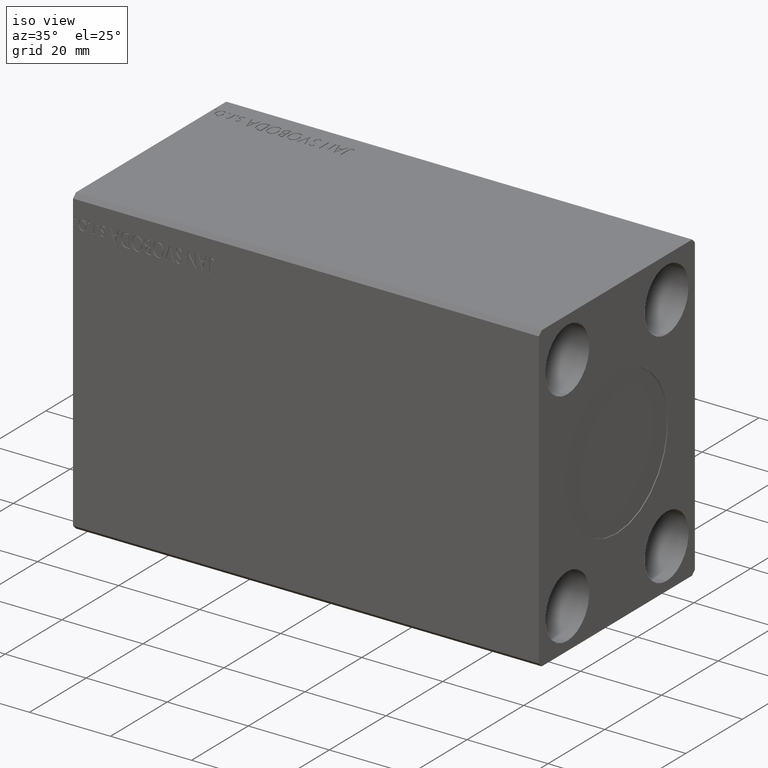
[diagram: clean part render]
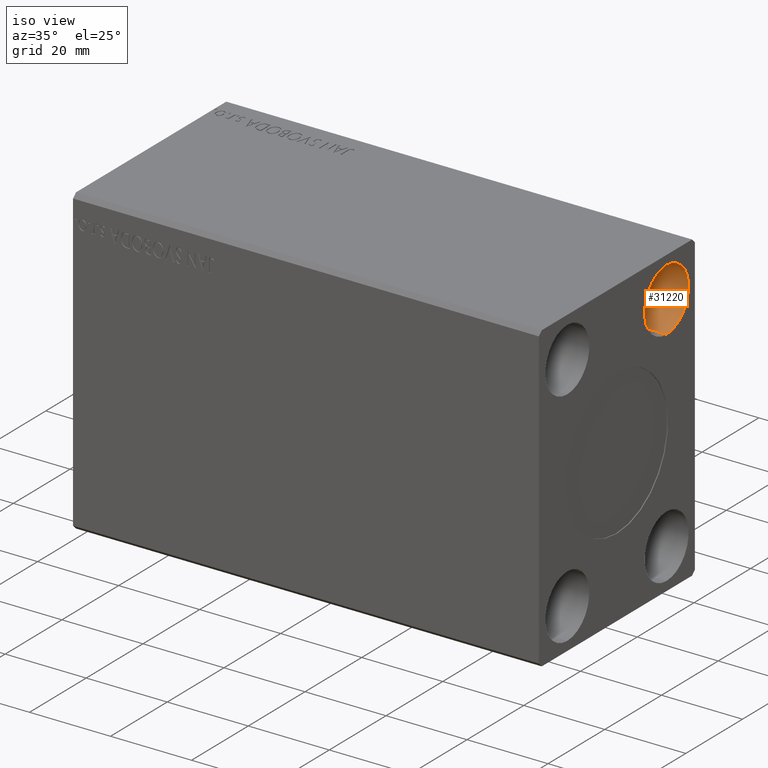
[diagram: same view with one face highlighted and labeled with its STEP entity id]
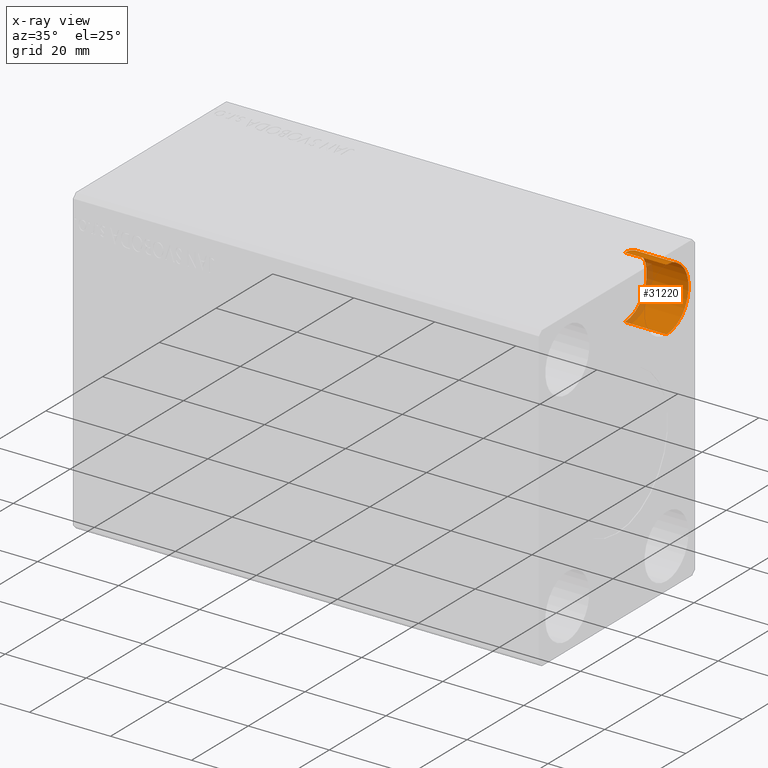
[diagram: x-ray of the same camera — body ghosted, the highlighted face saturated]
A machine part, iso view. The second image highlights one B-rep face of the part: STEP entity #31220.
The next image is the same camera in x-ray: the body ghosted, the highlighted face saturated — about 12% of this face is hidden behind the body in this view.
In plain terms, the highlighted cylindrical surface (partial cylindrical patch) has radius 7.75 mm, axis along (1, -0, -0).
Its self-contained STEP definition (entity closure, byte-faithful):
#791 = CARTESIAN_POINT ( 'NONE',  ( 104.6700000000000017, 17.50000000000000000, 27.50000000000000000 ) ) ;
#1450 = EDGE_CURVE ( 'NONE', #13870, #39615, #32095, .T. ) ;
#2200 = CARTESIAN_POINT ( 'NONE',  ( 104.6700000000000017, 17.50000000000000000, 27.50000000000000000 ) ) ;
#4145 = CARTESIAN_POINT ( 'NONE',  ( 104.6700000000000017, 17.50000000000000000, 19.74999999999999645 ) ) ;
#4449 = DIRECTION ( 'NONE',  ( 0.000000000000000000, 0.000000000000000000, -1.000000000000000000 ) ) ;
#5386 = ORIENTED_EDGE ( 'NONE', *, *, #25731, .T. ) ;
#6771 = CIRCLE ( 'NONE', #23976, 7.750000000000003553 ) ;
#11224 = EDGE_CURVE ( 'NONE', #20783, #16559, #6771, .T. ) ;
#12033 = AXIS2_PLACEMENT_3D ( 'NONE', #791, #40219, #4449 ) ;
#12535 = DIRECTION ( 'NONE',  ( 1.000000000000000000, -0.000000000000000000, -0.000000000000000000 ) ) ;
#13158 = DIRECTION ( 'NONE',  ( 1.000000000000000000, -0.000000000000000000, -0.000000000000000000 ) ) ;
#13498 = AXIS2_PLACEMENT_3D ( 'NONE', #28925, #13158, #39264 ) ;
#13870 = VERTEX_POINT ( 'NONE', #32663 ) ;
#15065 = ORIENTED_EDGE ( 'NONE', *, *, #24704, .F. ) ;
#15135 = LINE ( 'NONE', #34760, #28395 ) ;
#15541 = DIRECTION ( 'NONE',  ( 0.000000000000000000, 0.000000000000000000, -1.000000000000000000 ) ) ;
#16559 = VERTEX_POINT ( 'NONE', #25008 ) ;
#19772 = CARTESIAN_POINT ( 'NONE',  ( 104.6700000000000017, 17.50000000000000000, 19.74999999999999645 ) ) ;
#20236 = CARTESIAN_POINT ( 'NONE',  ( 115.0000000000000000, 17.50000000000000000, 35.25000000000000000 ) ) ;
#20501 = ORIENTED_EDGE ( 'NONE', *, *, #11224, .F. ) ;
#20783 = VERTEX_POINT ( 'NONE', #4145 ) ;
#23438 = DIRECTION ( 'NONE',  ( 1.000000000000000000, -0.000000000000000000, -0.000000000000000000 ) ) ;
#23976 = AXIS2_PLACEMENT_3D ( 'NONE', #2200, #27856, #15541 ) ;
#24704 = EDGE_CURVE ( 'NONE', #16559, #39615, #15135, .T. ) ;
#24952 = VECTOR ( 'NONE', #23438, 1000.000000000000000 ) ;
#25008 = CARTESIAN_POINT ( 'NONE',  ( 104.6700000000000017, 17.50000000000000000, 35.25000000000000000 ) ) ;
#25731 = EDGE_CURVE ( 'NONE', #20783, #13870, #33150, .T. ) ;
#26861 = FACE_OUTER_BOUND ( 'NONE', #40962, .T. ) ;
#27856 = DIRECTION ( 'NONE',  ( 1.000000000000000000, -0.000000000000000000, -0.000000000000000000 ) ) ;
#28395 = VECTOR ( 'NONE', #12535, 1000.000000000000000 ) ;
#28925 = CARTESIAN_POINT ( 'NONE',  ( 115.0000000000000000, 17.50000000000000000, 27.50000000000000000 ) ) ;
#30311 = CYLINDRICAL_SURFACE ( 'NONE', #12033, 7.750000000000003553 ) ;
#31220 = ADVANCED_FACE ( 'NONE', ( #26861 ), #30311, .F. ) ;
#32095 = CIRCLE ( 'NONE', #13498, 7.750000000000003553 ) ;
#32663 = CARTESIAN_POINT ( 'NONE',  ( 115.0000000000000000, 17.50000000000000000, 19.74999999999999645 ) ) ;
#33150 = LINE ( 'NONE', #19772, #24952 ) ;
#34379 = ORIENTED_EDGE ( 'NONE', *, *, #1450, .T. ) ;
#34760 = CARTESIAN_POINT ( 'NONE',  ( 104.6700000000000017, 17.50000000000000000, 35.25000000000000000 ) ) ;
#39264 = DIRECTION ( 'NONE',  ( 0.000000000000000000, 0.000000000000000000, -1.000000000000000000 ) ) ;
#39615 = VERTEX_POINT ( 'NONE', #20236 ) ;
#40219 = DIRECTION ( 'NONE',  ( 1.000000000000000000, -0.000000000000000000, -0.000000000000000000 ) ) ;
#40962 = EDGE_LOOP ( 'NONE', ( #15065, #20501, #5386, #34379 ) ) ;